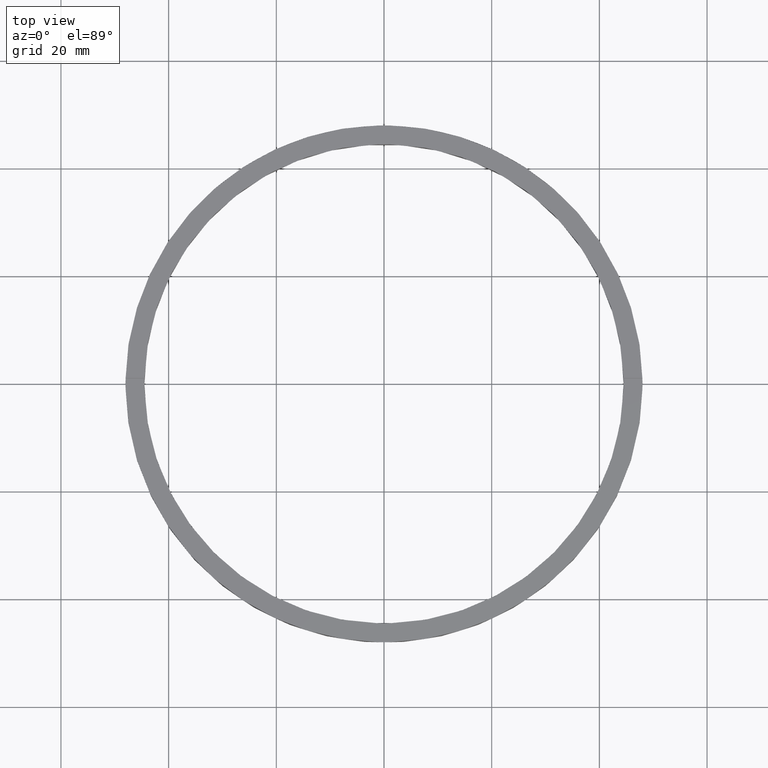
[diagram: clean part render]
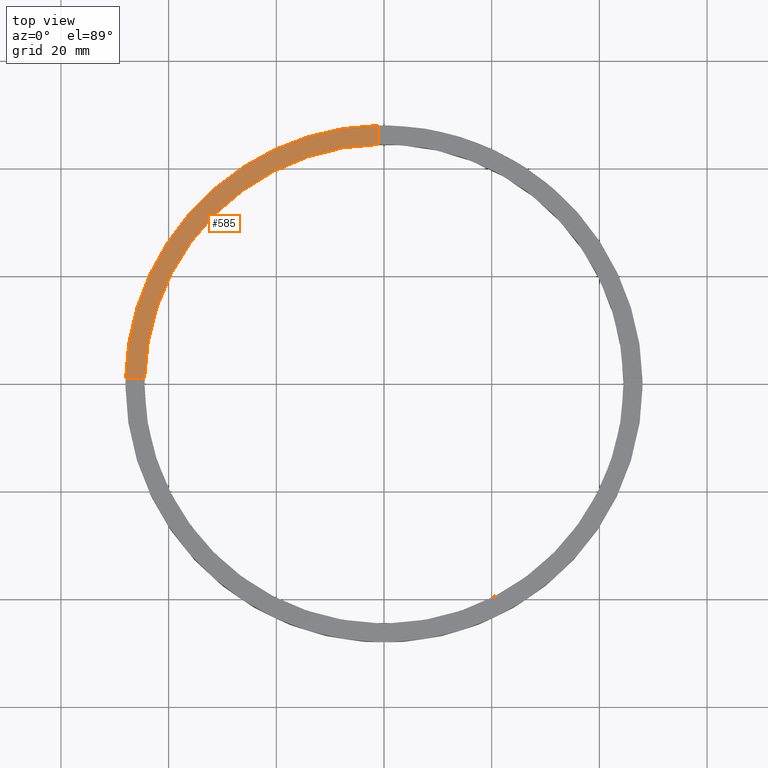
[diagram: same view with one face highlighted and labeled with its STEP entity id]
A machine part, top view. The second image highlights one B-rep face of the part: STEP entity #585.
In plain terms, the highlighted planar face has unit normal (0, 0, 1).
Its self-contained STEP definition (entity closure, byte-faithful):
#46 = DIRECTION ( 'NONE',  ( 0.000000000000000000, 0.000000000000000000, 1.000000000000000000 ) ) ;
#55 = DIRECTION ( 'NONE',  ( -0.000000000000000000, -1.000000000000000000, -0.000000000000000000 ) ) ;
#64 = CARTESIAN_POINT ( 'NONE',  ( -1.000000000000026423, 47.98958220280731268, 4.500000000000000000 ) ) ;
#77 = DIRECTION ( 'NONE',  ( 0.000000000000000000, 0.000000000000000000, 1.000000000000000000 ) ) ;
#86 = CARTESIAN_POINT ( 'NONE',  ( -44.48876262608345655, 0.9999999999999699130, 4.500000000000000000 ) ) ;
#96 = CIRCLE ( 'NONE', #736, 48.00000000000000711 ) ;
#110 = DIRECTION ( 'NONE',  ( -1.000000000000000000, -1.951563910473907735E-16, 0.000000000000000000 ) ) ;
#152 = ORIENTED_EDGE ( 'NONE', *, *, #344, .T. ) ;
#163 = CARTESIAN_POINT ( 'NONE',  ( -38.00000000000019185, 0.9999999999999711342, 4.500000000000000000 ) ) ;
#201 = VERTEX_POINT ( 'NONE', #86 ) ;
#206 = CARTESIAN_POINT ( 'NONE',  ( -1.000000000000026423, 44.48876262608345655, 4.500000000000000000 ) ) ;
#225 = VECTOR ( 'NONE', #110, 1000.000000000000000 ) ;
#239 = CIRCLE ( 'NONE', #416, 44.50000000000000711 ) ;
#246 = LINE ( 'NONE', #163, #225 ) ;
#250 = EDGE_LOOP ( 'NONE', ( #743, #152, #466, #266 ) ) ;
#266 = ORIENTED_EDGE ( 'NONE', *, *, #689, .F. ) ;
#303 = CARTESIAN_POINT ( 'NONE',  ( 0.000000000000000000, 0.000000000000000000, 4.500000000000000000 ) ) ;
#344 = EDGE_CURVE ( 'NONE', #437, #449, #96, .T. ) ;
#345 = DIRECTION ( 'NONE',  ( 1.000000000000000000, 0.000000000000000000, -0.000000000000000000 ) ) ;
#409 = CARTESIAN_POINT ( 'NONE',  ( 0.000000000000000000, 0.000000000000000000, 4.500000000000000000 ) ) ;
#416 = AXIS2_PLACEMENT_3D ( 'NONE', #409, #648, #705 ) ;
#437 = VERTEX_POINT ( 'NONE', #64 ) ;
#442 = EDGE_CURVE ( 'NONE', #201, #449, #246, .T. ) ;
#447 = CARTESIAN_POINT ( 'NONE',  ( 0.000000000000000000, 0.000000000000000000, 4.500000000000000000 ) ) ;
#449 = VERTEX_POINT ( 'NONE', #772 ) ;
#466 = ORIENTED_EDGE ( 'NONE', *, *, #442, .F. ) ;
#513 = FACE_OUTER_BOUND ( 'NONE', #250, .T. ) ;
#530 = LINE ( 'NONE', #773, #775 ) ;
#555 = VERTEX_POINT ( 'NONE', #206 ) ;
#585 = ADVANCED_FACE ( 'NONE', ( #513 ), #721, .T. ) ;
#628 = DIRECTION ( 'NONE',  ( 1.000000000000000000, 0.000000000000000000, 0.000000000000000000 ) ) ;
#648 = DIRECTION ( 'NONE',  ( 0.000000000000000000, 0.000000000000000000, 1.000000000000000000 ) ) ;
#689 = EDGE_CURVE ( 'NONE', #555, #201, #239, .T. ) ;
#701 = AXIS2_PLACEMENT_3D ( 'NONE', #303, #46, #345 ) ;
#704 = EDGE_CURVE ( 'NONE', #437, #555, #530, .T. ) ;
#705 = DIRECTION ( 'NONE',  ( 1.000000000000000000, 0.000000000000000000, 0.000000000000000000 ) ) ;
#721 = PLANE ( 'NONE',  #701 ) ;
#736 = AXIS2_PLACEMENT_3D ( 'NONE', #447, #77, #628 ) ;
#743 = ORIENTED_EDGE ( 'NONE', *, *, #704, .F. ) ;
#772 = CARTESIAN_POINT ( 'NONE',  ( -47.98958220280731268, 0.9999999999999692468, 4.500000000000000000 ) ) ;
#773 = CARTESIAN_POINT ( 'NONE',  ( -1.000000000000026423, 38.00000000000000711, 4.500000000000000000 ) ) ;
#775 = VECTOR ( 'NONE', #55, 1000.000000000000000 ) ;